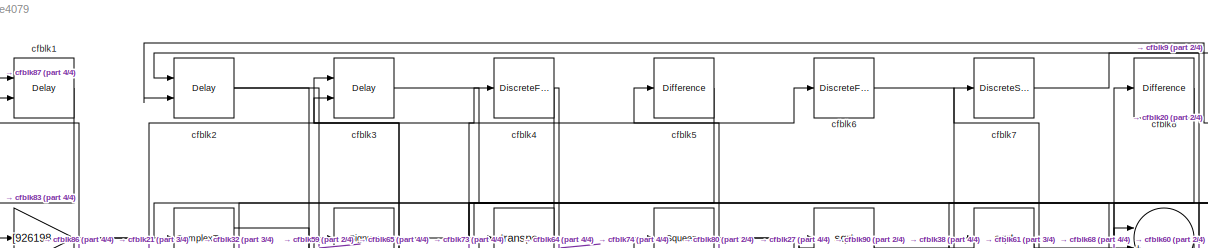
[diagram: root canvas - part 1/4, full width, top band]
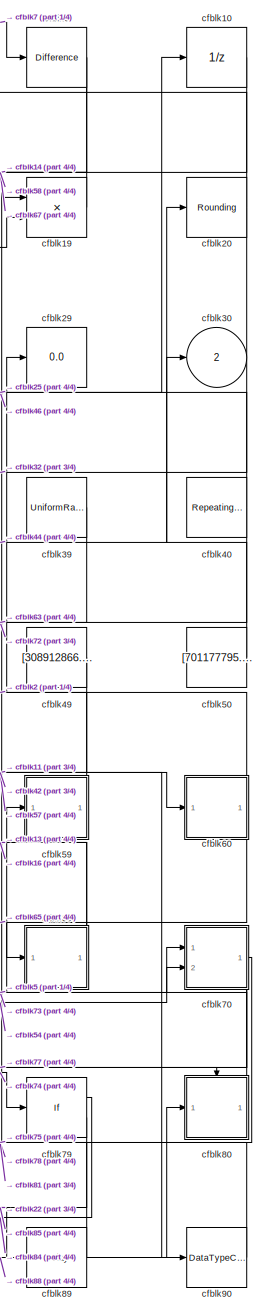
[diagram: root canvas - part 2/4, right side, full height]
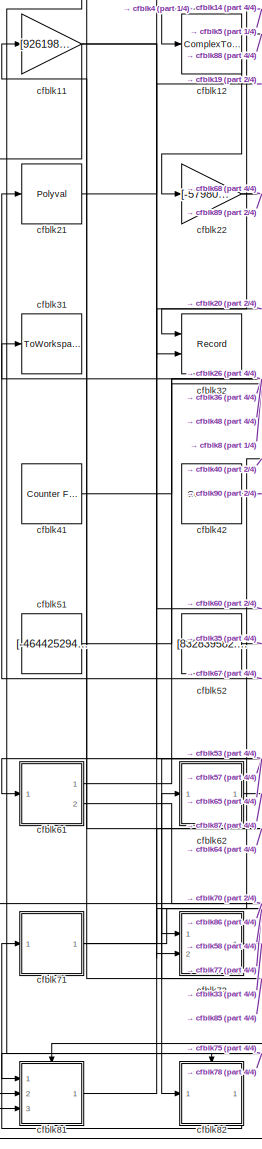
[diagram: root canvas - part 3/4, left side, full height]
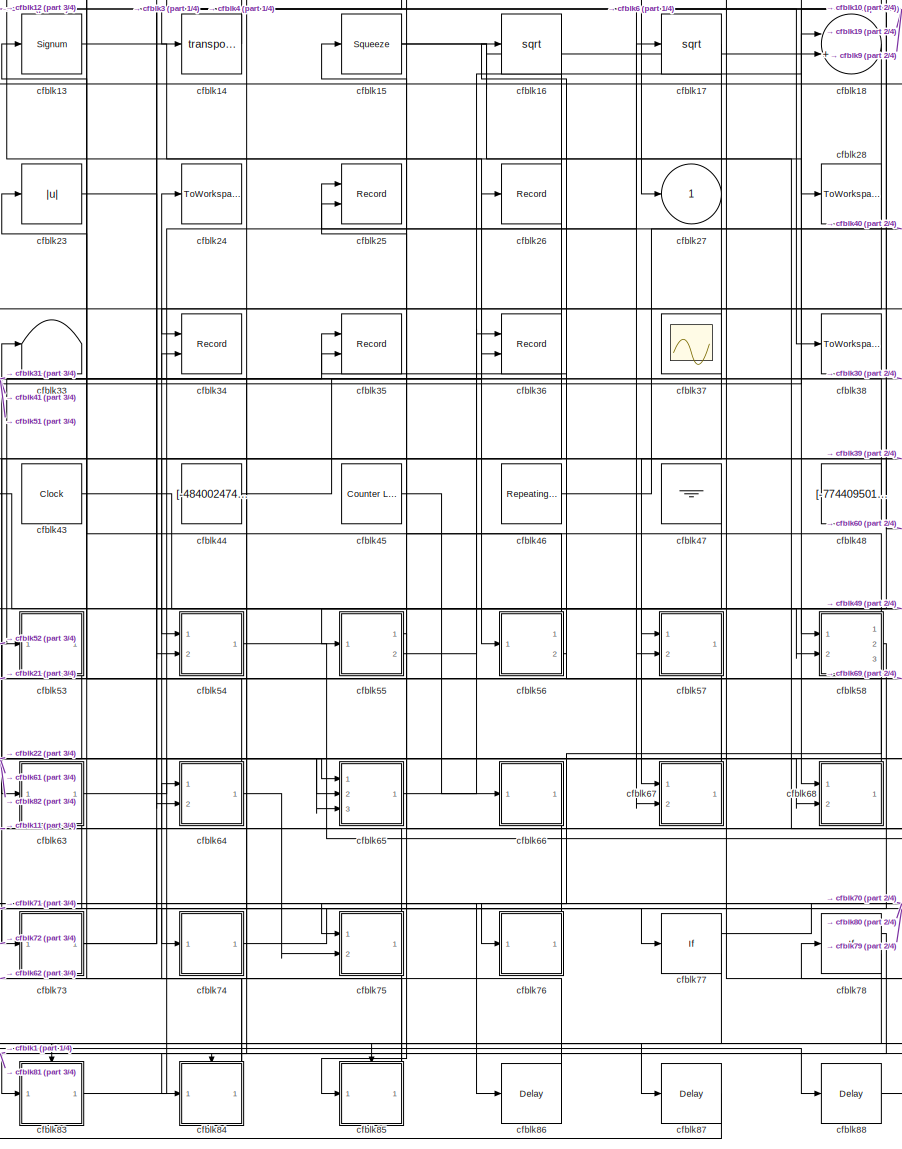
[diagram: root canvas - part 4/4, center side, full height]
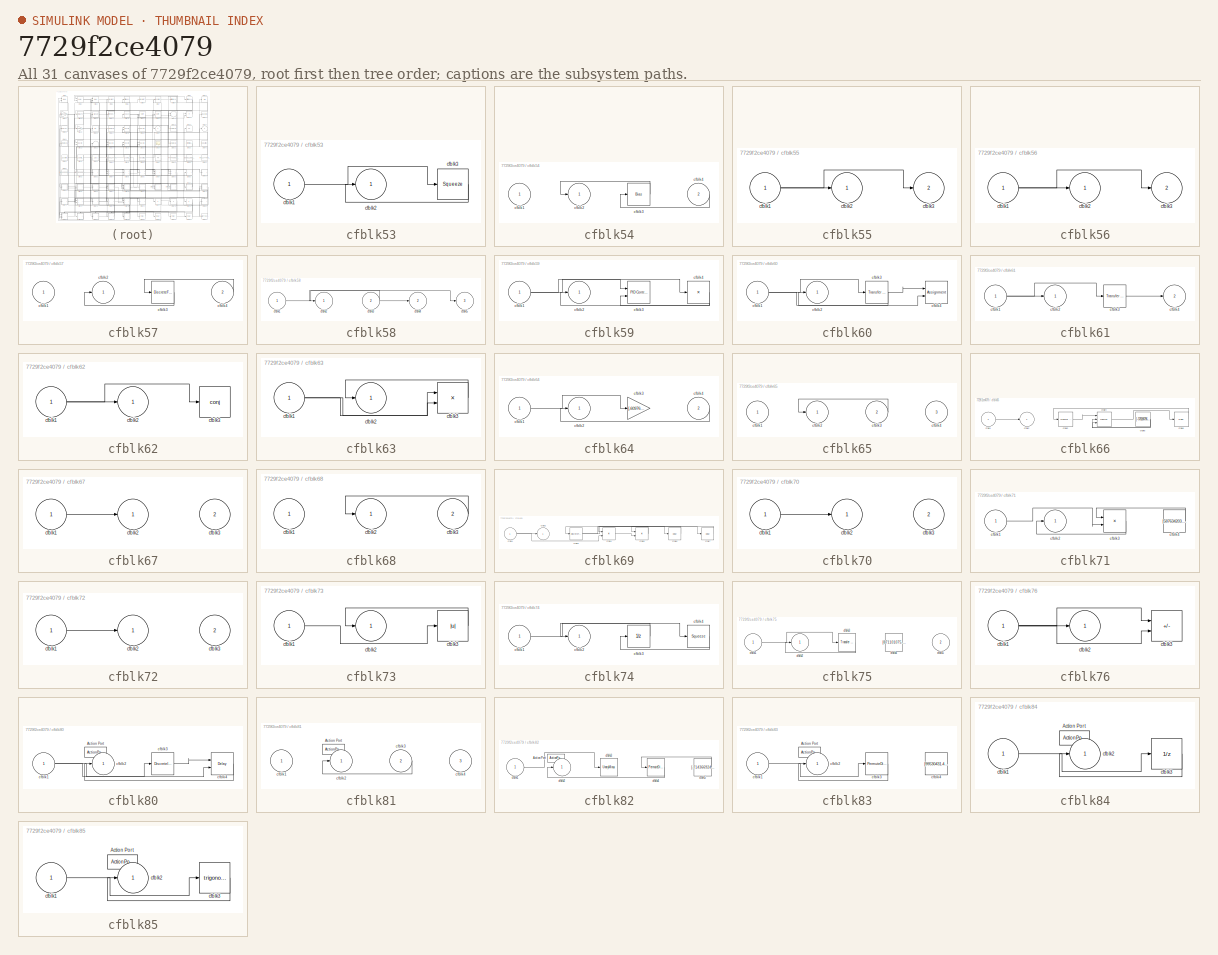
[diagram: thumbnail index - all 31 canvases of the model, root first then tree order]
MODEL slx_7729f2ce4079
KIND model
CONFIG AbsTol = auto
CONFIG EnableMultiTasking = off
CONFIG FixedStep = auto
CONFIG MaxStep = auto
CONFIG MinStep = auto
CONFIG RelTol = 1e-3
CONFIG SampleTimeConstraint = Unconstrained
CONFIG SolverName = VariableStepAuto
CONFIG StartTime = 0.0
CONFIG StopTime = 10.0
BLOCK [Delay] cfblk1
  InputPortMap = u0,e6
  Ports = [2, 1]
  SampleTime = 1
  ShowEnablePort = on
BLOCK [UnitDelay] cfblk10
  HasFrameUpgradeWarning = on
BLOCK [Gain] cfblk11
  Gain = [926198440.005498]
BLOCK [ComplexToMagnitudeAngle] cfblk12
  Ports = [1, 2]
BLOCK [Signum] cfblk13
BLOCK [Math] cfblk14
  Operator = transpose
  Ports = [1, 1]
BLOCK [Squeeze] cfblk15
BLOCK [Sqrt] cfblk16
BLOCK [Sqrt] cfblk17
BLOCK [Sum] cfblk18
  Inputs = |++
  Ports = [2, 1]
BLOCK [Product] cfblk19
  Inputs = **
  Ports = [2, 1]
BLOCK [Delay] cfblk2
  DelayLengthSource = Input port
  InputPortMap = u0,p1
  Ports = [2, 1]
  SampleTime = 1
BLOCK [Rounding] cfblk20
BLOCK [Polyval] cfblk21
  Coefs = [ +2.081618890e-019, -1.441693666e-014, +4.719686976e-010, -8.536869453e-006, +1.621573104e-001, -8.087801117e+001 ]
BLOCK [Gain] cfblk22
  Gain = [-579803431.518898]
BLOCK [Abs] cfblk23
  SaturateOnIntegerOverflow = off
BLOCK [ToWorkspace] cfblk24
  FixptAsFi = on
  MaxDataPoints = inf
  Ports = [1]
  SampleTime = -1
  SaveFormat = Timeseries
  VariableName = itfmrme
BLOCK [Record] cfblk25
  CompatibilityTag = XY
  FileSettingsInternal = {"entries":[{"content":{"excelSettings":{"content":{},"type":"Streamout.ExcelSettings"}},"type":"Streamout.FileSettingStorage","uuid":"ebd6f4a9-3581-428a-b59a-ad7a62004bd4"}],"packageUris":["http://schema.mathworks.com/mf0/streamout_blocks/R2020a"],"version":"1.0"}
  Layout = [1 1]
  Ports = [2]
  SignalsInternal = {"entries":[{"content":{"signals":[{"content":{"blockPath":["sampleModel196/cfblk25"],"channel":[],"dimensions":[1],"domain":"sampleModel196/cfblk25","lineColor":"#a2142f","plots":[1],"port":1,"sid":[""],"signalID":7449,"signalName":"cfblk56:1"},"type":"RecordBlkView.Signal","uuid":"a9c48982-f614-47e9-af30-97d896957ff6"},{"content":{"blockPath":["sampleModel196/cfblk25"],"channel":[],"dimensions":...<+385ch>
  VisualizationBindings = {"xyplotplugin":{"info":[{"series":[{"bindingParametersList":[{"parameter":"X-Axis","signalID":7449,"signalName":"cfblk56:1"},{"parameter":"Y-Axis","signalID":7453,"signalName":"cfblk40"}],"seriesID":12748}],"subplotID":1}]}}
BLOCK [Record] cfblk26
  FileSettingsInternal = {"entries":[{"content":{"excelSettings":{"content":{},"type":"Streamout.ExcelSettings"}},"type":"Streamout.FileSettingStorage","uuid":"2445aa79-1fdb-47b8-89e7-35a85b27600f"}],"packageUris":["http://schema.mathworks.com/mf0/streamout_blocks/R2020a"],"version":"1.0"}
  Ports = [1]
  SignalsInternal = {"entries":[{"content":{"signals":[{"content":{"blockPath":["sampleModel196/cfblk26"],"channel":[],"dimensions":[1],"domain":"sampleModel196/cfblk26","lineColor":"#ff6929","plots":[1],"port":1,"sid":[""],"signalID":7495,"signalName":"cfblk41"},"type":"RecordBlkView.Signal","uuid":"b33c4b9a-08ec-4f33-ba24-e1cc10466944"}]},"type":"RecordBlkView.InputSignals","uuid":"3c88b68e-3c23-4d2f-858d-3a9c6e306...<+97ch>
  VisualizationBindings = {"sparklinesplugin":{"info":[{"bindingParametersList":[],"subplotID":1}]}}
BLOCK [Outport] cfblk27
BLOCK [ToWorkspace] cfblk28
  FixptAsFi = on
  MaxDataPoints = inf
  Ports = [1]
  SampleTime = -1
  SaveFormat = Timeseries
  VariableName = zzplqwi
BLOCK [Display] cfblk29
  Decimation = 1
  Ports = [1]
BLOCK [Delay] cfblk3
  InputPortMap = u0,e6
  Ports = [2, 1]
  SampleTime = 1
  ShowEnablePort = on
BLOCK [Outport] cfblk30
  Port = 2
BLOCK [ToWorkspace] cfblk31
  FixptAsFi = on
  MaxDataPoints = inf
  Ports = [1]
  SampleTime = -1
  SaveFormat = Timeseries
  VariableName = tpesfyf
BLOCK [Record] cfblk32
  CompatibilityTag = XY
  FileSettingsInternal = {"entries":[{"content":{"excelSettings":{"content":{},"type":"Streamout.ExcelSettings"}},"type":"Streamout.FileSettingStorage","uuid":"bf744f18-d074-43f9-bec1-89a481855710"}],"packageUris":["http://schema.mathworks.com/mf0/streamout_blocks/R2020a"],"version":"1.0"}
  Layout = [1 1]
  Ports = [2]
  SignalsInternal = {"entries":[{"content":{"signals":[{"content":{"blockPath":["sampleModel196/cfblk32"],"channel":[],"dimensions":[1],"domain":"sampleModel196/cfblk32","lineColor":"#a2142f","plots":[1],"port":1,"sid":[""],"signalID":7457,"signalName":"cfblk5"},"type":"RecordBlkView.Signal","uuid":"31689776-47fe-422e-aca7-1eb21403d129"},{"content":{"blockPath":["sampleModel196/cfblk32"],"channel":[],"dimensions":[1]...<+382ch>
  VisualizationBindings = {"xyplotplugin":{"info":[{"series":[{"bindingParametersList":[{"parameter":"X-Axis","signalID":7457,"signalName":"cfblk5"},{"parameter":"Y-Axis","signalID":7461,"signalName":"cfblk20"}],"seriesID":42470}],"subplotID":1}]}}
BLOCK [Terminator] cfblk33
BLOCK [Record] cfblk34
  CompatibilityTag = XY
  FileSettingsInternal = {"entries":[{"content":{"excelSettings":{"content":{},"type":"Streamout.ExcelSettings"}},"type":"Streamout.FileSettingStorage","uuid":"44b56a1a-1e95-409d-987e-e733322c070c"}],"packageUris":["http://schema.mathworks.com/mf0/streamout_blocks/R2020a"],"version":"1.0"}
  Layout = [1 1]
  Ports = [2]
  SignalsInternal = {"entries":[{"content":{"signals":[{"content":{"blockPath":["sampleModel196/cfblk34"],"channel":[],"dimensions":[1],"domain":"sampleModel196/cfblk34","lineColor":"#a2142f","plots":[1],"port":1,"sid":[""],"signalID":7465,"signalName":"cfblk18"},"type":"RecordBlkView.Signal","uuid":"0f9eff3a-cfcd-403f-aa3d-d8cbb3cc7e76"},{"content":{"blockPath":["sampleModel196/cfblk34"],"channel":[],"dimensions":[1...<+383ch>
  VisualizationBindings = {"xyplotplugin":{"info":[{"series":[{"bindingParametersList":[{"parameter":"X-Axis","signalID":7465,"signalName":"cfblk18"},{"parameter":"Y-Axis","signalID":7469,"signalName":"cfblk85"}],"seriesID":17726}],"subplotID":1}]}}
BLOCK [Record] cfblk35
  CompatibilityTag = XY
  FileSettingsInternal = {"entries":[{"content":{"excelSettings":{"content":{},"type":"Streamout.ExcelSettings"}},"type":"Streamout.FileSettingStorage","uuid":"7f9abc0e-2cc1-4510-b0e6-42d033897b2e"}],"packageUris":["http://schema.mathworks.com/mf0/streamout_blocks/R2020a"],"version":"1.0"}
  Layout = [1 1]
  Ports = [2]
  SignalsInternal = {"entries":[{"content":{"signals":[{"content":{"blockPath":["sampleModel196/cfblk35"],"channel":[],"dimensions":[1],"domain":"sampleModel196/cfblk35","lineColor":"#a2142f","plots":[1],"port":1,"sid":[""],"signalID":7473,"signalName":"cfblk52"},"type":"RecordBlkView.Signal","uuid":"3c653f7d-91cd-4ce5-b0bf-04fb68007592"},{"content":{"blockPath":["sampleModel196/cfblk35"],"channel":[],"dimensions":[1...<+385ch>
  VisualizationBindings = {"xyplotplugin":{"info":[{"series":[{"bindingParametersList":[{"parameter":"X-Axis","signalID":7473,"signalName":"cfblk52"},{"parameter":"Y-Axis","signalID":7477,"signalName":"cfblk56:2"}],"seriesID":7674}],"subplotID":1}]}}
BLOCK [Record] cfblk36
  CompatibilityTag = XY
  FileSettingsInternal = {"entries":[{"content":{"excelSettings":{"content":{},"type":"Streamout.ExcelSettings"}},"type":"Streamout.FileSettingStorage","uuid":"f043a9ff-7dfe-4c6c-88df-b525cd69d3e4"}],"packageUris":["http://schema.mathworks.com/mf0/streamout_blocks/R2020a"],"version":"1.0"}
  Layout = [1 1]
  Ports = [2]
  SignalsInternal = {"entries":[{"content":{"signals":[{"content":{"blockPath":["sampleModel196/cfblk36"],"channel":[],"dimensions":[1],"domain":"sampleModel196/cfblk36","lineColor":"#a2142f","plots":[1],"port":1,"sid":[""],"signalID":7481,"signalName":"cfblk65"},"type":"RecordBlkView.Signal","uuid":"65fcb63e-1503-467f-81bc-7a25df069058"},{"content":{"blockPath":["sampleModel196/cfblk36"],"channel":[],"dimensions":[1...<+383ch>
  VisualizationBindings = {"xyplotplugin":{"info":[{"series":[{"bindingParametersList":[{"parameter":"X-Axis","signalID":7481,"signalName":"cfblk65"},{"parameter":"Y-Axis","signalID":7485,"signalName":"cfblk51"}],"seriesID":38838}],"subplotID":1}]}}
BLOCK [Scope] cfblk37
  Floating = on
  NumInputPorts = 1
  Ports = []
BLOCK [ToWorkspace] cfblk38
  FixptAsFi = on
  MaxDataPoints = inf
  Ports = [1]
  SampleTime = -1
  SaveFormat = Timeseries
  VariableName = bnlwbwv
BLOCK [UniformRandomNumber] cfblk39
  Maximum = [8573210541.669261]
  Minimum = [-3778114337.742830]
  SampleTime = 0.1
  Seed = [62594337.000000]
BLOCK [DiscreteFir] cfblk4
  InputPortMap = u0
  OutputPortMap = o0
  Ports = [1, 1]
  SampleTime = 1
BLOCK [Reference] cfblk40  REF=simulink/Sources/Repeating
Sequence
Interpolated
  Ports = [0, 1]
  SourceBlock = simulink/Sources/Repeating\nSequence\nInterpolated
  SourceProductBaseCode = SL
  SourceType = Repeating Sequence Interpolated
BLOCK [Reference] cfblk41  REF=simulink/Sources/Counter
Free-Running
  Ports = [0, 1]
  SourceBlock = simulink/Sources/Counter\nFree-Running
  SourceProductBaseCode = SL
  SourceType = Counter Free-Running
BLOCK [Reference] cfblk42  REF=simulink/Sources/Counter
Limited
  Ports = [0, 1]
  SourceBlock = simulink/Sources/Counter\nLimited
  SourceProductBaseCode = SL
  SourceType = Counter Limited
BLOCK [Clock] cfblk43
BLOCK [Constant] cfblk44
  SampleTime = 1
  Value = [-484002474.081457]
BLOCK [Reference] cfblk45  REF=simulink/Sources/Counter
Limited
  Ports = [0, 1]
  SourceBlock = simulink/Sources/Counter\nLimited
  SourceProductBaseCode = SL
  SourceType = Counter Limited
BLOCK [Reference] cfblk46  REF=simulink/Sources/Repeating
Sequence
Interpolated
  Ports = [0, 1]
  SourceBlock = simulink/Sources/Repeating\nSequence\nInterpolated
  SourceProductBaseCode = SL
  SourceType = Repeating Sequence Interpolated
BLOCK [Ground] cfblk47
BLOCK [Constant] cfblk48
  SampleTime = 1
  Value = [-774409501.632483]
BLOCK [Constant] cfblk49
  SampleTime = 1
  Value = [308912866.136064]
BLOCK [Reference] cfblk5  REF=simulink/Discrete/Difference
  Ports = [1, 1]
  SourceBlock = simulink/Discrete/Difference
  SourceProductBaseCode = SL
  SourceType = Difference
BLOCK [Constant] cfblk50
  SampleTime = 1
  Value = [701177795.079143]
BLOCK [Constant] cfblk51
  SampleTime = 1
  Value = [-464425294.241565]
BLOCK [Constant] cfblk52
  SampleTime = 1
  Value = [832839582.731089]
BLOCK [SubSystem] cfblk53
  Ports = [1, 1]
  RequestExecContextInheritance = off
BLOCK [Inport] cfblk53/cfblk1
BLOCK [Outport] cfblk53/cfblk2
BLOCK [Squeeze] cfblk53/cfblk3
BLOCK [SubSystem] cfblk54
  Ports = [2, 1]
  RequestExecContextInheritance = off
BLOCK [Inport] cfblk54/cfblk1
BLOCK [Outport] cfblk54/cfblk2
BLOCK [Bias] cfblk54/cfblk3
  Bias = [18141649.709936]
  SaturateOnIntegerOverflow = off
BLOCK [Inport] cfblk54/cfblk4
  Port = 2
BLOCK [SubSystem] cfblk55
  Ports = [1, 2]
  RequestExecContextInheritance = off
BLOCK [Inport] cfblk55/cfblk1
BLOCK [Outport] cfblk55/cfblk2
BLOCK [Outport] cfblk55/cfblk3
  Port = 2
BLOCK [SubSystem] cfblk56
  Ports = [1, 2]
  RequestExecContextInheritance = off
BLOCK [Inport] cfblk56/cfblk1
BLOCK [Outport] cfblk56/cfblk2
BLOCK [Outport] cfblk56/cfblk3
  Port = 2
BLOCK [SubSystem] cfblk57
  Ports = [2, 1]
  RequestExecContextInheritance = off
BLOCK [Inport] cfblk57/cfblk1
BLOCK [Outport] cfblk57/cfblk2
BLOCK [DiscreteFilter] cfblk57/cfblk3
  InputPortMap = u0
  Ports = [1, 1]
  SampleTime = 1
BLOCK [Inport] cfblk57/cfblk4
  Port = 2
BLOCK [SubSystem] cfblk58
  Ports = [2, 3]
  RequestExecContextInheritance = off
BLOCK [Inport] cfblk58/cfblk1
BLOCK [Outport] cfblk58/cfblk2
BLOCK [Inport] cfblk58/cfblk3
  Port = 2
BLOCK [Outport] cfblk58/cfblk4
  Port = 2
BLOCK [Outport] cfblk58/cfblk5
  Port = 3
BLOCK [SubSystem] cfblk59
  Ports = [1, 1]
  RequestExecContextInheritance = off
BLOCK [Inport] cfblk59/cfblk1
BLOCK [Outport] cfblk59/cfblk2
BLOCK [Reference] cfblk59/cfblk3  REF=slpidlib/PID Controller (2DOF)
  Ports = [2, 1]
  SourceBlock = slpidlib/PID Controller (2DOF)
  SourceProductBaseCode = SL
  SourceType = PID 2dof
BLOCK [Product] cfblk59/cfblk4
  Inputs = *
  Ports = [1, 1]
BLOCK [DiscreteFir] cfblk6
  InputPortMap = u0
  OutputPortMap = o0
  Ports = [1, 1]
  SampleTime = 1
BLOCK [SubSystem] cfblk60
  Ports = [1, 1]
  RequestExecContextInheritance = off
BLOCK [Inport] cfblk60/cfblk1
BLOCK [Outport] cfblk60/cfblk2
BLOCK [Reference] cfblk60/cfblk3  REF=simulink/Discrete/Transfer Fcn
Real Zero
  Ports = [1, 1]
  SourceBlock = simulink/Discrete/Transfer Fcn\nReal Zero
  SourceProductBaseCode = SL
  SourceType = Transfer Fcn Real Zero
BLOCK [Assignment] cfblk60/cfblk4
  DiagnosticForDimensions = Warning
  IndexOptions = Index vector (dialog)
  Indices = 1
  OutputSizes = 1
  Ports = [2, 1]
BLOCK [SubSystem] cfblk61
  Ports = [1, 2]
  RequestExecContextInheritance = off
BLOCK [Inport] cfblk61/cfblk1
BLOCK [Outport] cfblk61/cfblk2
BLOCK [Reference] cfblk61/cfblk3  REF=simulink/Discrete/Transfer Fcn
Real Zero
  Ports = [1, 1]
  SourceBlock = simulink/Discrete/Transfer Fcn\nReal Zero
  SourceProductBaseCode = SL
  SourceType = Transfer Fcn Real Zero
BLOCK [Outport] cfblk61/cfblk4
  Port = 2
BLOCK [SubSystem] cfblk62
  Ports = [1, 1]
  RequestExecContextInheritance = off
BLOCK [Inport] cfblk62/cfblk1
BLOCK [Outport] cfblk62/cfblk2
BLOCK [Math] cfblk62/cfblk3
  Operator = conj
  Ports = [1, 1]
BLOCK [SubSystem] cfblk63
  Ports = [1, 1]
  RequestExecContextInheritance = off
BLOCK [Inport] cfblk63/cfblk1
BLOCK [Outport] cfblk63/cfblk2
BLOCK [Product] cfblk63/cfblk3
  Inputs = **
  Ports = [2, 1]
BLOCK [SubSystem] cfblk64
  Ports = [2, 1]
  RequestExecContextInheritance = off
BLOCK [Inport] cfblk64/cfblk1
BLOCK [Outport] cfblk64/cfblk2
BLOCK [Gain] cfblk64/cfblk3
  Gain = [-609765210.525331]
BLOCK [Inport] cfblk64/cfblk4
  Port = 2
BLOCK [SubSystem] cfblk65
  Ports = [3, 1]
  RequestExecContextInheritance = off
BLOCK [Inport] cfblk65/cfblk1
BLOCK [Outport] cfblk65/cfblk2
BLOCK [Inport] cfblk65/cfblk3
  Port = 2
BLOCK [Inport] cfblk65/cfblk4
  Port = 3
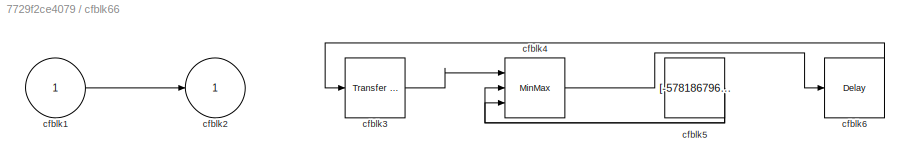
BLOCK [SubSystem] cfblk66
  Ports = [1, 1]
  RequestExecContextInheritance = off
BLOCK [Inport] cfblk66/cfblk1
BLOCK [Outport] cfblk66/cfblk2
BLOCK [Reference] cfblk66/cfblk3  REF=simulink/Discrete/Transfer Fcn
Lead or Lag
  Ports = [1, 1]
  SourceBlock = simulink/Discrete/Transfer Fcn\nLead or Lag
  SourceProductBaseCode = SL
  SourceType = Lead or Lag Compensator
BLOCK [MinMax] cfblk66/cfblk4
  Function = max
  Inputs = 3
  Ports = [3, 1]
BLOCK [Constant] cfblk66/cfblk5
  SampleTime = 1
  Value = [-578186796.436698]
BLOCK [Delay] cfblk66/cfblk6
  InputPortMap = u0
  Ports = [1, 1]
  SampleTime = 1
BLOCK [SubSystem] cfblk67
  Ports = [2, 1]
  RequestExecContextInheritance = off
BLOCK [Inport] cfblk67/cfblk1
BLOCK [Outport] cfblk67/cfblk2
BLOCK [Inport] cfblk67/cfblk3
  Port = 2
BLOCK [SubSystem] cfblk68
  Ports = [2, 1]
  RequestExecContextInheritance = off
BLOCK [Inport] cfblk68/cfblk1
BLOCK [Outport] cfblk68/cfblk2
BLOCK [Inport] cfblk68/cfblk3
  Port = 2
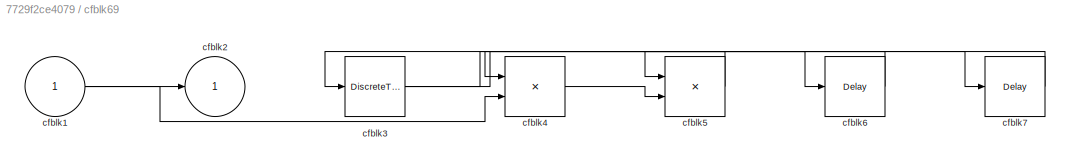
BLOCK [SubSystem] cfblk69
  Ports = [1, 1]
  RequestExecContextInheritance = off
BLOCK [Inport] cfblk69/cfblk1
BLOCK [Outport] cfblk69/cfblk2
BLOCK [DiscreteTransferFcn] cfblk69/cfblk3
  InputPortMap = u0
  Ports = [1, 1]
  SampleTime = 1
BLOCK [Product] cfblk69/cfblk4
  Ports = [2, 1]
BLOCK [Product] cfblk69/cfblk5
  Inputs = **
  Ports = [2, 1]
BLOCK [Delay] cfblk69/cfblk6
  InputPortMap = u0
  Ports = [1, 1]
  SampleTime = 1
BLOCK [Delay] cfblk69/cfblk7
  InputPortMap = u0
  Ports = [1, 1]
  SampleTime = 1
BLOCK [DiscreteStateSpace] cfblk7
BLOCK [SubSystem] cfblk70
  Ports = [2, 1]
  RequestExecContextInheritance = off
BLOCK [Inport] cfblk70/cfblk1
BLOCK [Outport] cfblk70/cfblk2
BLOCK [Inport] cfblk70/cfblk3
  Port = 2
BLOCK [SubSystem] cfblk71
  Ports = [1, 1]
  RequestExecContextInheritance = off
BLOCK [Inport] cfblk71/cfblk1
BLOCK [Outport] cfblk71/cfblk2
BLOCK [Product] cfblk71/cfblk3
  Inputs = **
  Ports = [2, 1]
BLOCK [Constant] cfblk71/cfblk4
  SampleTime = 1
  Value = [587634203.654360]
BLOCK [SubSystem] cfblk72
  Ports = [2, 1]
  RequestExecContextInheritance = off
BLOCK [Inport] cfblk72/cfblk1
BLOCK [Outport] cfblk72/cfblk2
BLOCK [Inport] cfblk72/cfblk3
  Port = 2
BLOCK [SubSystem] cfblk73
  Ports = [1, 1]
  RequestExecContextInheritance = off
BLOCK [Inport] cfblk73/cfblk1
BLOCK [Outport] cfblk73/cfblk2
BLOCK [Abs] cfblk73/cfblk3
  SaturateOnIntegerOverflow = off
BLOCK [SubSystem] cfblk74
  Ports = [1, 1]
  RequestExecContextInheritance = off
BLOCK [Inport] cfblk74/cfblk1
BLOCK [Outport] cfblk74/cfblk2
BLOCK [UnitDelay] cfblk74/cfblk3
  HasFrameUpgradeWarning = on
BLOCK [Squeeze] cfblk74/cfblk4
BLOCK [SubSystem] cfblk75
  Ports = [2, 1]
  RequestExecContextInheritance = off
BLOCK [Inport] cfblk75/cfblk1
BLOCK [Outport] cfblk75/cfblk2
BLOCK [Reference] cfblk75/cfblk3  REF=simulink/Discrete/Transfer Fcn
First Order
  Ports = [1, 1]
  SourceBlock = simulink/Discrete/Transfer Fcn\nFirst Order
  SourceProductBaseCode = SL
  SourceType = First Order Transfer Fcn
BLOCK [Constant] cfblk75/cfblk4
  SampleTime = 1
  Value = [871101075.158705]
BLOCK [Inport] cfblk75/cfblk5
  Port = 2
BLOCK [SubSystem] cfblk76
  Ports = [1, 1]
  RequestExecContextInheritance = off
BLOCK [Inport] cfblk76/cfblk1
BLOCK [Outport] cfblk76/cfblk2
BLOCK [Sum] cfblk76/cfblk3
  IconShape = rectangular
  Inputs = -+
  Ports = [2, 1]
BLOCK [If] cfblk77
  IfExpression = u1 >= 0
  Ports = [1, 2]
  SampleTime = 1
BLOCK [If] cfblk78
  IfExpression = u1 >= 0
  Ports = [1, 2]
  SampleTime = 1
BLOCK [If] cfblk79
  IfExpression = u1 >= 0
  Ports = [1, 2]
  SampleTime = 1
BLOCK [Reference] cfblk8  REF=simulink/Discrete/Difference
  Ports = [1, 1]
  SourceBlock = simulink/Discrete/Difference
  SourceProductBaseCode = SL
  SourceType = Difference
BLOCK [SubSystem] cfblk80
  Ports = [1, 1, 0, 0, 0, 0, 0, 1]
  RequestExecContextInheritance = off
  TreatAsAtomicUnit = on
BLOCK [ActionPort] cfblk80/Action Port
  ActionPortLabel = if(u1 >= 0)
BLOCK [Inport] cfblk80/cfblk1
BLOCK [Outport] cfblk80/cfblk2
BLOCK [DiscreteIntegrator] cfblk80/cfblk3
  ICPrevOutput = DiscIntNeverNeededParam
  ICPrevScaledInput = DiscIntNeverNeededParam
  InitialConditionSetting = Auto
  Ports = [1, 1]
  SampleTime = -1
BLOCK [Delay] cfblk80/cfblk4
  DelayLengthSource = Input port
  InputPortMap = u0,p1
  Ports = [2, 1]
BLOCK [SubSystem] cfblk81
  Ports = [3, 1, 0, 0, 0, 0, 0, 1]
  RequestExecContextInheritance = off
  TreatAsAtomicUnit = on
BLOCK [ActionPort] cfblk81/Action Port
  ActionPortLabel = else
BLOCK [Inport] cfblk81/cfblk1
BLOCK [Outport] cfblk81/cfblk2
BLOCK [Inport] cfblk81/cfblk3
  Port = 2
BLOCK [Inport] cfblk81/cfblk4
  Port = 3
BLOCK [SubSystem] cfblk82
  Ports = [1, 1, 0, 0, 0, 0, 0, 1]
  RequestExecContextInheritance = off
  TreatAsAtomicUnit = on
BLOCK [ActionPort] cfblk82/Action Port
  ActionPortLabel = if(u1 >= 0)
BLOCK [Inport] cfblk82/cfblk1
BLOCK [Outport] cfblk82/cfblk2
BLOCK [UnaryMinus] cfblk82/cfblk3
BLOCK [PermuteDimensions] cfblk82/cfblk4
BLOCK [Constant] cfblk82/cfblk5
  SampleTime = 1
  Value = [-714366924.916919]
BLOCK [SubSystem] cfblk83
  Ports = [1, 1, 0, 0, 0, 0, 0, 1]
  RequestExecContextInheritance = off
  TreatAsAtomicUnit = on
BLOCK [ActionPort] cfblk83/Action Port
  ActionPortLabel = else
BLOCK [Inport] cfblk83/cfblk1
BLOCK [Outport] cfblk83/cfblk2
BLOCK [PermuteDimensions] cfblk83/cfblk3
BLOCK [Constant] cfblk83/cfblk4
  SampleTime = 1
  Value = [99530431.455912]
BLOCK [SubSystem] cfblk84
  Ports = [1, 1, 0, 0, 0, 0, 0, 1]
  RequestExecContextInheritance = off
  TreatAsAtomicUnit = on
BLOCK [ActionPort] cfblk84/Action Port
  ActionPortLabel = if(u1 >= 0)
BLOCK [Inport] cfblk84/cfblk1
BLOCK [Outport] cfblk84/cfblk2
BLOCK [UnitDelay] cfblk84/cfblk3
  HasFrameUpgradeWarning = on
  SampleTime = -1
BLOCK [SubSystem] cfblk85
  Ports = [1, 1, 0, 0, 0, 0, 0, 1]
  RequestExecContextInheritance = off
  TreatAsAtomicUnit = on
BLOCK [ActionPort] cfblk85/Action Port
  ActionPortLabel = else
BLOCK [Inport] cfblk85/cfblk1
BLOCK [Outport] cfblk85/cfblk2
BLOCK [Trigonometry] cfblk85/cfblk3
  Ports = [1, 1]
BLOCK [Delay] cfblk86
  InputPortMap = u0
  Ports = [1, 1]
  SampleTime = 1
BLOCK [Delay] cfblk87
  InputPortMap = u0
  Ports = [1, 1]
  SampleTime = 1
BLOCK [Delay] cfblk88
  InputPortMap = u0
  Ports = [1, 1]
  SampleTime = 1
BLOCK [Delay] cfblk89
  InputPortMap = u0
  Ports = [1, 1]
  SampleTime = 1
BLOCK [Reference] cfblk9  REF=simulink/Discrete/Difference
  Ports = [1, 1]
  SourceBlock = simulink/Discrete/Difference
  SourceProductBaseCode = SL
  SourceType = Difference
BLOCK [DataTypeConversion] cfblk90
  RndMeth = Floor
  SaturateOnIntegerOverflow = off
LINE cfblk10:1 -> cfblk67:2
NET cfblk11:1 -> cfblk60:1, cfblk65:1, cfblk81:2
LINE cfblk12:1 -> cfblk88:1
LINE cfblk12:2 -> cfblk22:1
LINE cfblk13:1 -> cfblk56:1
LINE cfblk14:1 -> cfblk12:1
NET cfblk15:1 -> cfblk18:2, cfblk28:1
LINE cfblk16:1 -> cfblk54:1
LINE cfblk17:1 -> cfblk67:1
LINE cfblk18:1 -> cfblk34:1
LINE cfblk19:1 -> cfblk14:1
LINE cfblk1:1 -> cfblk83:1
NET cfblk20:1 -> cfblk2:2, cfblk32:2
LINE cfblk21:1 -> cfblk4:1
NET cfblk22:1 -> cfblk68:2, cfblk89:1
LINE cfblk23:1 -> cfblk57:1
NET cfblk2:1 -> cfblk59:1, cfblk65:3
LINE cfblk39:1 -> cfblk63:1
LINE cfblk3:1 -> cfblk38:1
NET cfblk40:1 -> cfblk25:2, cfblk72:1
LINE cfblk41:1 -> cfblk26:1
LINE cfblk42:1 -> cfblk90:1
LINE cfblk43:1 -> cfblk58:2
LINE cfblk44:1 -> cfblk30:1
LINE cfblk45:1 -> cfblk66:1
LINE cfblk46:1 -> cfblk10:1
LINE cfblk47:1 -> cfblk55:1
LINE cfblk48:1 -> cfblk31:1
LINE cfblk49:1 -> cfblk57:2
NET cfblk4:1 -> cfblk64:2, cfblk74:1
LINE cfblk50:1 -> cfblk20:1
LINE cfblk51:1 -> cfblk36:2
LINE cfblk52:1 -> cfblk35:1
LINE cfblk53/cfblk1:1 -> cfblk53/cfblk3:1
LINE cfblk53/cfblk3:1 -> cfblk53/cfblk2:1
LINE cfblk53:1 -> cfblk61:1
LINE cfblk54/cfblk3:1 -> cfblk54/cfblk2:1
LINE cfblk54/cfblk4:1 -> cfblk54/cfblk3:1
LINE cfblk54:1 -> cfblk70:1
NET cfblk55/cfblk1:1 -> cfblk55/cfblk2:1, cfblk55/cfblk3:1
LINE cfblk55:1 -> cfblk85:1
LINE cfblk55:2 -> cfblk18:1
NET cfblk56/cfblk1:1 -> cfblk56/cfblk2:1, cfblk56/cfblk3:1
LINE cfblk56:1 -> cfblk25:1
LINE cfblk56:2 -> cfblk35:2
LINE cfblk57/cfblk3:1 -> cfblk57/cfblk2:1
LINE cfblk57/cfblk4:1 -> cfblk57/cfblk3:1
LINE cfblk57:1 -> cfblk82:1
LINE cfblk58/cfblk1:1 -> cfblk58/cfblk5:1
NET cfblk58/cfblk3:1 -> cfblk58/cfblk2:1, cfblk58/cfblk4:1
LINE cfblk58:1 -> cfblk23:1
LINE cfblk58:2 -> cfblk72:2
LINE cfblk58:3 -> cfblk76:1
NET cfblk59/cfblk1:1 -> cfblk59/cfblk3:1, cfblk59/cfblk4:1
NET cfblk59/cfblk4:1 -> cfblk59/cfblk2:1, cfblk59/cfblk3:2
LINE cfblk59:1 -> cfblk29:1
LINE cfblk5:1 -> cfblk32:1
NET cfblk60/cfblk1:1 -> cfblk60/cfblk3:1, cfblk60/cfblk4:2
NET cfblk60/cfblk3:1 -> cfblk60/cfblk2:1, cfblk60/cfblk4:1
NET cfblk60:1 -> cfblk2:1, cfblk65:2
NET cfblk61/cfblk1:1 -> cfblk61/cfblk2:1, cfblk61/cfblk3:1
LINE cfblk61/cfblk3:1 -> cfblk61/cfblk4:1
LINE cfblk61:1 -> cfblk8:1
LINE cfblk61:2 -> cfblk86:1
NET cfblk62/cfblk1:1 -> cfblk62/cfblk2:1, cfblk62/cfblk3:1
LINE cfblk62:1 -> cfblk87:1
NET cfblk63/cfblk1:1 -> cfblk63/cfblk3:1, cfblk63/cfblk3:2
LINE cfblk63/cfblk3:1 -> cfblk63/cfblk2:1
NET cfblk63:1 -> cfblk69:1, cfblk73:1
LINE cfblk64/cfblk1:1 -> cfblk64/cfblk3:1
LINE cfblk64/cfblk4:1 -> cfblk64/cfblk2:1
NET cfblk64:1 -> cfblk3:2, cfblk75:2
LINE cfblk65/cfblk3:1 -> cfblk65/cfblk2:1
LINE cfblk65:1 -> cfblk36:1
LINE cfblk66/cfblk1:1 -> cfblk66/cfblk2:1
LINE cfblk66/cfblk3:1 -> cfblk66/cfblk4:1
LINE cfblk66/cfblk4:1 -> cfblk66/cfblk6:1
NET cfblk66/cfblk5:1 -> cfblk66/cfblk4:2, cfblk66/cfblk4:3
LINE cfblk66/cfblk6:1 -> cfblk66/cfblk3:1
LINE cfblk66:1 -> cfblk84:1
LINE cfblk67/cfblk1:1 -> cfblk67/cfblk2:1
LINE cfblk67:1 -> cfblk21:1
LINE cfblk68/cfblk3:1 -> cfblk68/cfblk2:1
LINE cfblk68:1 -> cfblk3:1
NET cfblk69/cfblk1:1 -> cfblk69/cfblk2:1, cfblk69/cfblk4:2
NET cfblk69/cfblk3:1 -> cfblk69/cfblk6:1, cfblk69/cfblk7:1
LINE cfblk69/cfblk4:1 -> cfblk69/cfblk5:2
LINE cfblk69/cfblk5:1 -> cfblk69/cfblk3:1
LINE cfblk69/cfblk6:1 -> cfblk69/cfblk5:1
LINE cfblk69/cfblk7:1 -> cfblk69/cfblk4:1
NET cfblk69:1 -> cfblk13:1, cfblk16:1
LINE cfblk6:1 -> cfblk27:1
LINE cfblk70/cfblk1:1 -> cfblk70/cfblk2:1
NET cfblk70:1 -> cfblk75:1, cfblk78:1, cfblk81:3
LINE cfblk71/cfblk1:1 -> cfblk71/cfblk3:2
LINE cfblk71/cfblk3:1 -> cfblk71/cfblk2:1
LINE cfblk71/cfblk4:1 -> cfblk71/cfblk3:1
NET cfblk71:1 -> cfblk64:1, cfblk77:1
LINE cfblk72/cfblk1:1 -> cfblk72/cfblk2:1
LINE cfblk72:1 -> cfblk33:1
LINE cfblk73/cfblk1:1 -> cfblk73/cfblk3:1
LINE cfblk73/cfblk3:1 -> cfblk73/cfblk2:1
NET cfblk73:1 -> cfblk6:1, cfblk70:2
LINE cfblk74/cfblk1:1 -> cfblk74/cfblk4:1
LINE cfblk74/cfblk3:1 -> cfblk74/cfblk2:1
LINE cfblk74/cfblk4:1 -> cfblk74/cfblk3:1
LINE cfblk74:1 -> cfblk79:1
LINE cfblk75/cfblk1:1 -> cfblk75/cfblk3:1
LINE cfblk75/cfblk3:1 -> cfblk75/cfblk2:1
NET cfblk75:1 -> cfblk11:1, cfblk81:1
NET cfblk76/cfblk1:1 -> cfblk76/cfblk2:1, cfblk76/cfblk3:1, cfblk76/cfblk3:2
LINE cfblk76:1 -> cfblk15:1
LINE cfblk77:1 -> cfblk80:ifaction
LINE cfblk77:2 -> cfblk81:ifaction
LINE cfblk78:1 -> cfblk82:ifaction
LINE cfblk78:2 -> cfblk83:ifaction
LINE cfblk79:1 -> cfblk84:ifaction
LINE cfblk79:2 -> cfblk85:ifaction
LINE cfblk7:1 -> cfblk9:1
NET cfblk80/cfblk1:1 -> cfblk80/cfblk3:1, cfblk80/cfblk4:2
LINE cfblk80/cfblk3:1 -> cfblk80/cfblk4:1
LINE cfblk80/cfblk4:1 -> cfblk80/cfblk2:1
LINE cfblk80:1 -> cfblk5:1
LINE cfblk81/cfblk3:1 -> cfblk81/cfblk2:1
LINE cfblk81:1 -> cfblk19:2
LINE cfblk82/cfblk1:1 -> cfblk82/cfblk3:1
LINE cfblk82/cfblk4:1 -> cfblk82/cfblk2:1
LINE cfblk82/cfblk5:1 -> cfblk82/cfblk4:1
LINE cfblk82:1 -> cfblk71:1
LINE cfblk83/cfblk1:1 -> cfblk83/cfblk3:1
LINE cfblk83/cfblk3:1 -> cfblk83/cfblk2:1
LINE cfblk83:1 -> cfblk17:1
LINE cfblk84/cfblk1:1 -> cfblk84/cfblk3:1
LINE cfblk84/cfblk3:1 -> cfblk84/cfblk2:1
NET cfblk84:1 -> cfblk24:1, cfblk53:1
LINE cfblk85/cfblk1:1 -> cfblk85/cfblk3:1
LINE cfblk85/cfblk3:1 -> cfblk85/cfblk2:1
NET cfblk85:1 -> cfblk34:2, cfblk62:1
LINE cfblk86:1 -> cfblk1:2
LINE cfblk87:1 -> cfblk1:1
LINE cfblk88:1 -> cfblk80:1
LINE cfblk89:1 -> cfblk19:1
LINE cfblk8:1 -> cfblk68:1
LINE cfblk90:1 -> cfblk7:1
NET cfblk9:1 -> cfblk54:2, cfblk58:1
note: NET lines group one-source signal fan-out (src -> all destinations, sorted); 1:1 wires keep LINE
